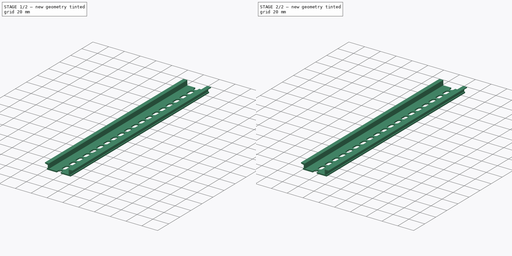
[diagram: build sequence overview — one tinted view per stage of 2, left to right]
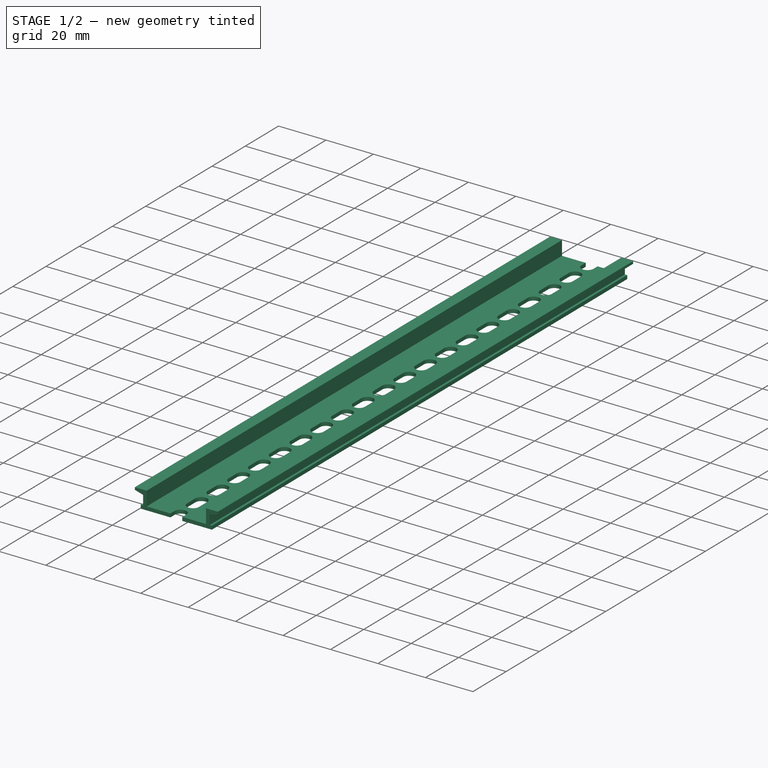
[diagram: stage 1 of 2 — iso view after this stage's code; geometry added in this stage tinted green]
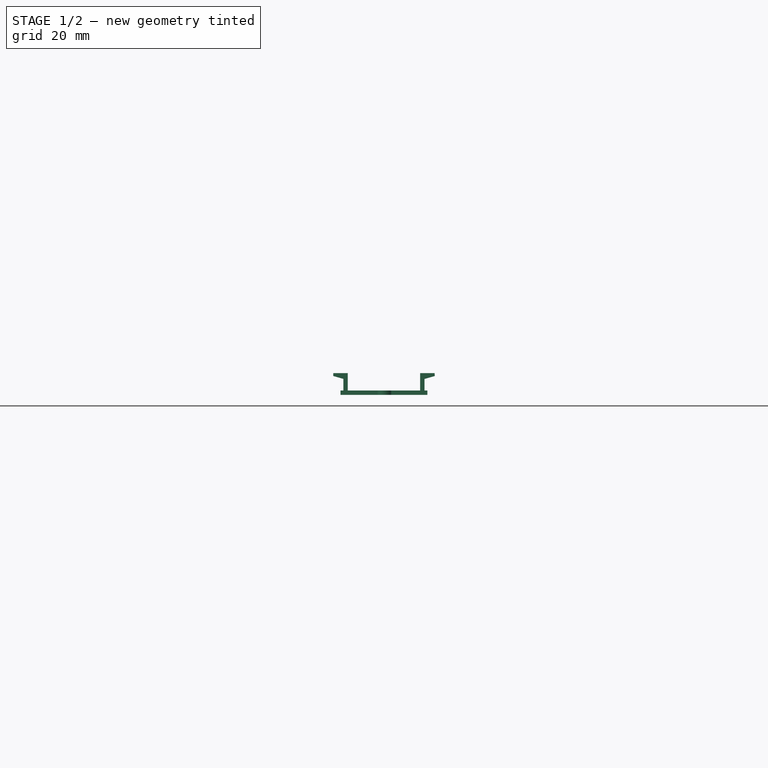
[diagram: stage 1 of 2 — front view after this stage's code; geometry added in this stage tinted green]
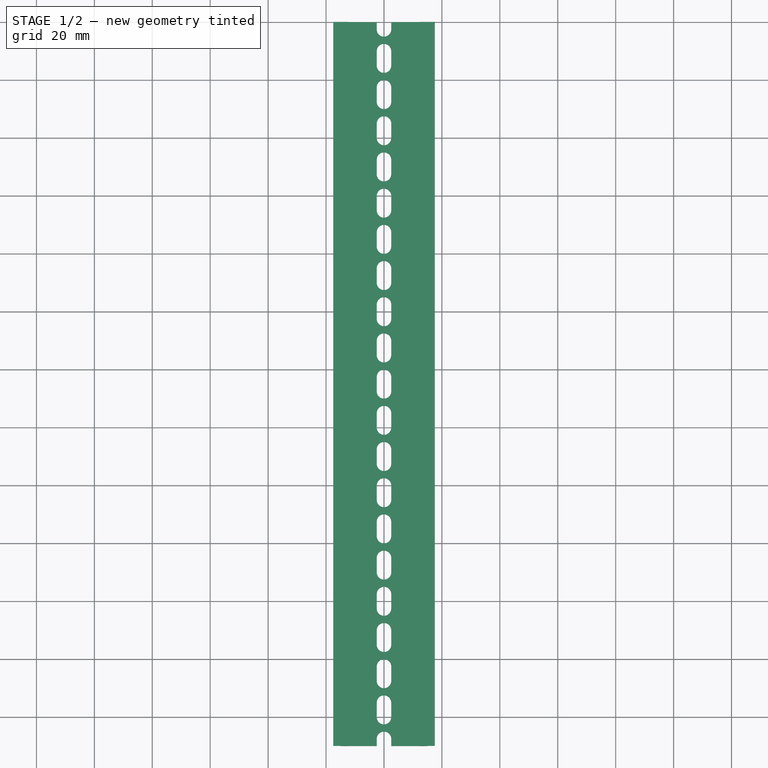
[diagram: stage 1 of 2 — top view after this stage's code; geometry added in this stage tinted green]
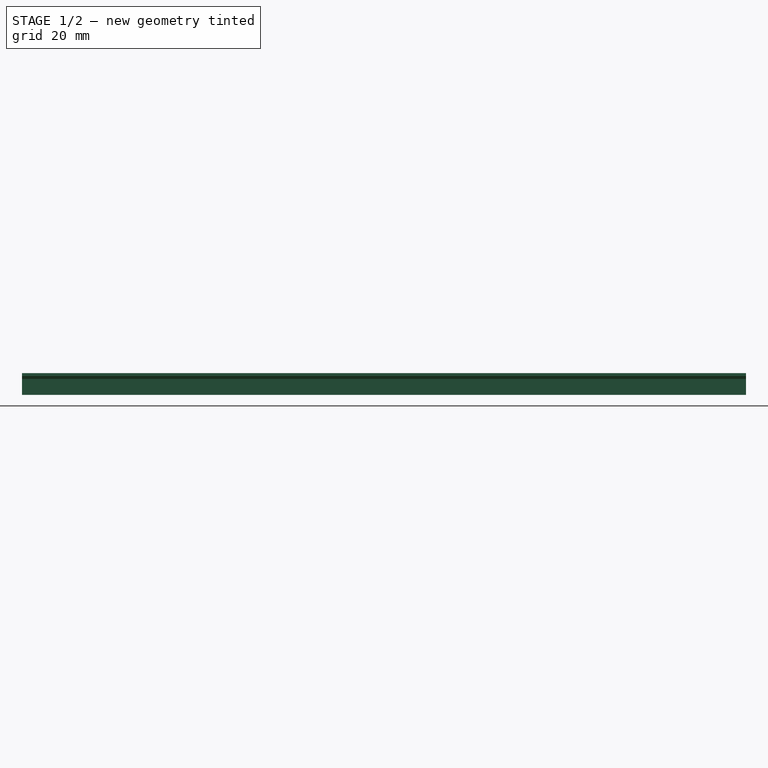
[diagram: stage 1 of 2 — right view after this stage's code; geometry added in this stage tinted green]
FCSTD DOCUMENT  (FreeCAD 0.19R24267 +99 (Git))
Label: DIN35レール250mm
License: All rights reserved
LicenseURL: http://en.wikipedia.org/wiki/All_rights_reserved
objects: Sketcher::SketchObject×2, PartDesign::Pocket×2, PartDesign::Pad×1, PartDesign::Body×1
note: 9 computed .brp shape members not serialized (recipe doc carries the construction recipe); baked Part::Feature solids carry a one-line shape summary decoded from their .brp

FEATURE [Sketcher::SketchObject] Sketch
  FullyConstrained = false
  MapMode = 5
  Placement = pos=(0,0,0) rot=(1,0,0;1.5708rad)
  Support = -> [XZ_Plane]
  sketch-geometry (18):
    g0: LineSegment StartX=0 StartY=0 StartZ=0 EndX=-15 EndY=0 EndZ=0
    g1: LineSegment StartX=-15 StartY=0 StartZ=0 EndX=-15 EndY=1.5 EndZ=0
    g2: LineSegment StartX=-15 StartY=1.5 StartZ=0 EndX=-14 EndY=1.5 EndZ=0
    g3: LineSegment StartX=-14 StartY=1.5 StartZ=0 EndX=-14 EndY=5.5 EndZ=0
    g4: LineSegment StartX=-12.5 StartY=7.5 StartZ=0 EndX=-12.5 EndY=1.5 EndZ=0
    g5: LineSegment StartX=-12.5 StartY=1.5 StartZ=0 EndX=0 EndY=1.5 EndZ=0
    g6: LineSegment StartX=-12.5 StartY=7.5 StartZ=0 EndX=-17.5 EndY=7.5 EndZ=0
    g7: LineSegment StartX=-17.5 StartY=7.5 StartZ=0 EndX=-17.5 EndY=6.5 EndZ=0
    g8: LineSegment StartX=-17.5 StartY=6.5 StartZ=0 EndX=-14 EndY=5.5 EndZ=0
    g9: LineSegment StartX=0 StartY=0 StartZ=0 EndX=15 EndY=0 EndZ=0
    g10: LineSegment StartX=15 StartY=0 StartZ=0 EndX=15 EndY=1.5 EndZ=0
    g11: LineSegment StartX=15 StartY=1.5 StartZ=0 EndX=14 EndY=1.5 EndZ=0
    g12: LineSegment StartX=14 StartY=1.5 StartZ=0 EndX=14 EndY=5.5 EndZ=0
    g13: LineSegment StartX=14 StartY=5.5 StartZ=0 EndX=17.5148 EndY=6.5 EndZ=0
    g14: LineSegment StartX=17.5148 StartY=6.5 StartZ=0 EndX=17.5 EndY=7.5 EndZ=0
    g15: LineSegment StartX=17.5 StartY=7.5 StartZ=0 EndX=12.5 EndY=7.5 EndZ=0
    g16: LineSegment StartX=12.5 StartY=7.5 StartZ=0 EndX=12.5 EndY=1.5 EndZ=0
    g17: LineSegment StartX=12.5 StartY=1.5 StartZ=0 EndX=0 EndY=1.5 EndZ=0
  constraints (52):
    c: Coincident(g0,g-1)
    c: Horizontal(g0)
    c: Coincident(g1,g0)
    c: Coincident(g2,g1)
    c: Horizontal(g2)
    c: Coincident(g3,g2)
    c: Vertical(g3)
    c: Vertical(g4)
    c: Coincident(g5,g4)
    c: PointOnObject(g5,g-2)
    c: Horizontal(g5)
    c: DistanceX(g0,g0) = 15
    c: DistanceY(g1,g1) = 1.5
    c: Angle(g1,g2) = 1.5708
    c: DistanceX(g2,g2) = 1
    c: DistanceY(g3,g3) = 4
    c: DistanceY(g4,g4) = 6
    c: Coincident(g6,g4)
    c: Horizontal(g6)
    c: DistanceX(g2,g4) = 1.5
    c: Coincident(g7,g6)
    c: Vertical(g7)
    c: DistanceY(g7,g7) = 1
    c: DistanceY(g0,g5) = 1.5
    c: Coincident(g8,g7)
    c: Coincident(g8,g3)
    c: DistanceX(g6,g6) = 5
    c: Coincident(g9,g0)
    c: PointOnObject(g9,g-1)
    c: Coincident(g10,g9)
    c: Vertical(g10)
    c: Coincident(g11,g10)
    c: Coincident(g12,g11)
    c: Vertical(g12)
    c: Coincident(g13,g12)
    c: Coincident(g14,g13)
    c: Coincident(g15,g14)
    c: Horizontal(g15)
    c: Coincident(g16,g15)
    c: Vertical(g16)
    c: Coincident(g17,g16)
    c: Coincident(g17,g5)
    c: Horizontal(g17)
    c: DistanceX(g9,g9) = 15
    c: DistanceY(g10,g10) = 1.5
    c: DistanceX(g11,g11) = 1
    c: DistanceY(g16,g16) = 6
    c: DistanceY(g14,g14) = 1
    c: DistanceX(g15,g15) = 5
    c: DistanceX(g16,g11) = 1.5
    c: DistanceY(g12,g12) = 4
    c: Angle(g11,g12) = 1.5708
FEATURE [PartDesign::Pad] Pad  label="レール断面図"
  Direction = (1,1,1)
  Length = 250
  Length2 = 100
  Placement = pos=(0,0,0) rot=(1,0,0;1.5708rad)
  Profile = -> Sketch
  Type = 0
FEATURE [Sketcher::SketchObject] Sketch001
  FullyConstrained = true
  MapMode = 5
  Placement = pos=(0,1e-15,1.5) rot=(0,0,1;3.14159rad)
  Support = -> [Pad]
  sketch-geometry (96):
    g0: ArcOfCircle CenterX=0 CenterY=2.5 CenterZ=0 NormalX=0 NormalY=0 NormalZ=1 AngleXU=0 Radius=2.5 StartAngle=2e-16 EndAngle=3.14159
    g1: ArcOfCircle CenterX=-1e-16 CenterY=-2.5 CenterZ=0 NormalX=0 NormalY=0 NormalZ=1 AngleXU=0 Radius=2.5 StartAngle=3.14159 EndAngle=6.28319
    g2: LineSegment StartX=-2.5 StartY=2.5 StartZ=0 EndX=-2.5 EndY=-2.5 EndZ=0
    g3: LineSegment StartX=2.5 StartY=2.5 StartZ=0 EndX=2.5 EndY=-2.5 EndZ=0
    g4: ArcOfCircle CenterX=0 CenterY=15 CenterZ=0 NormalX=0 NormalY=0 NormalZ=1 AngleXU=0 Radius=2.5 StartAngle=2e-16 EndAngle=3.14159
    g5: ArcOfCircle CenterX=0 CenterY=10 CenterZ=0 NormalX=0 NormalY=0 NormalZ=1 AngleXU=0 Radius=2.5 StartAngle=3.14159 EndAngle=6.28319
    g6: LineSegment StartX=-2.5 StartY=15 StartZ=0 EndX=-2.5 EndY=10 EndZ=0
    g7: LineSegment StartX=2.5 StartY=15 StartZ=0 EndX=2.5 EndY=10 EndZ=0
    g8: ArcOfCircle CenterX=-1e-16 CenterY=27.5 CenterZ=0 NormalX=0 NormalY=0 NormalZ=1 AngleXU=0 Radius=2.5 StartAngle=5e-16 EndAngle=3.14159
    g9: ArcOfCircle CenterX=0 CenterY=22.5 CenterZ=0 NormalX=0 NormalY=0 NormalZ=1 AngleXU=0 Radius=2.5 StartAngle=3.14159 EndAngle=6.28319
    g10: LineSegment StartX=-2.5 StartY=27.5 StartZ=0 EndX=-2.5 EndY=22.5 EndZ=0
    g11: LineSegment StartX=2.5 StartY=27.5 StartZ=0 EndX=2.5 EndY=22.5 EndZ=0
    g12: ArcOfCircle CenterX=-1e-16 CenterY=40 CenterZ=0 NormalX=0 NormalY=0 NormalZ=1 AngleXU=0 Radius=2.5 StartAngle=1.3e-15 EndAngle=3.14159
    g13: ArcOfCircle CenterX=0 CenterY=35 CenterZ=0 NormalX=0 NormalY=0 NormalZ=1 AngleXU=0 Radius=2.5 StartAngle=3.14159 EndAngle=6.28319
    g14: LineSegment StartX=-2.5 StartY=40 StartZ=0 EndX=-2.5 EndY=35 EndZ=0
    g15: LineSegment StartX=2.5 StartY=40 StartZ=0 EndX=2.5 EndY=35 EndZ=0
    g16: ArcOfCircle CenterX=0 CenterY=52.5 CenterZ=0 NormalX=0 NormalY=0 NormalZ=1 AngleXU=0 Radius=2.5 StartAngle=1.2e-15 EndAngle=3.14159
    g17: ArcOfCircle CenterX=0 CenterY=47.5 CenterZ=0 NormalX=0 NormalY=0 NormalZ=1 AngleXU=0 Radius=2.5 StartAngle=3.14159 EndAngle=6.28319
    g18: LineSegment StartX=-2.5 StartY=52.5 StartZ=0 EndX=-2.5 EndY=47.5 EndZ=0
    g19: LineSegment StartX=2.5 StartY=52.5 StartZ=0 EndX=2.5 EndY=47.5 EndZ=0
    g20: ArcOfCircle CenterX=1e-16 CenterY=65 CenterZ=0 NormalX=0 NormalY=0 NormalZ=1 AngleXU=0 Radius=2.5 StartAngle=0 EndAngle=3.14159
    g21: ArcOfCircle CenterX=0 CenterY=60 CenterZ=0 NormalX=0 NormalY=0 NormalZ=1 AngleXU=0 Radius=2.5 StartAngle=3.14159 EndAngle=6.28319
    g22: LineSegment StartX=-2.5 StartY=65 StartZ=0 EndX=-2.5 EndY=60 EndZ=0
    g23: LineSegment StartX=2.5 StartY=65 StartZ=0 EndX=2.5 EndY=60 EndZ=0
    g24: ArcOfCircle CenterX=0 CenterY=77.5 CenterZ=0 NormalX=0 NormalY=0 NormalZ=1 AngleXU=0 Radius=2.5 StartAngle=-1.8e-15 EndAngle=3.14159
    g25: ArcOfCircle CenterX=2e-16 CenterY=72.5 CenterZ=0 NormalX=0 NormalY=0 NormalZ=1 AngleXU=0 Radius=2.5 StartAngle=3.14159 EndAngle=6.28319
    g26: LineSegment StartX=-2.5 StartY=77.5 StartZ=0 EndX=-2.5 EndY=72.5 EndZ=0
    g27: LineSegment StartX=2.5 StartY=77.5 StartZ=0 EndX=2.5 EndY=72.5 EndZ=0
    g28: ArcOfCircle CenterX=1e-16 CenterY=90 CenterZ=0 NormalX=0 NormalY=0 NormalZ=1 AngleXU=0 Radius=2.5 StartAngle=1.5e-15 EndAngle=3.14159
    g29: ArcOfCircle CenterX=0 CenterY=85 CenterZ=0 NormalX=0 NormalY=0 NormalZ=1 AngleXU=0 Radius=2.5 StartAngle=3.14159 EndAngle=6.28319
    g30: LineSegment StartX=-2.5 StartY=90 StartZ=0 EndX=-2.5 EndY=85 EndZ=0
    g31: LineSegment StartX=2.5 StartY=90 StartZ=0 EndX=2.5 EndY=85 EndZ=0
    g32: ArcOfCircle CenterX=1e-16 CenterY=102.5 CenterZ=0 NormalX=0 NormalY=0 NormalZ=1 AngleXU=0 Radius=2.5 StartAngle=6e-16 EndAngle=3.14159
    g33: ArcOfCircle CenterX=0 CenterY=97.5 CenterZ=0 NormalX=0 NormalY=0 NormalZ=1 AngleXU=0 Radius=2.5 StartAngle=3.14159 EndAngle=6.28319
    g34: LineSegment StartX=-2.5 StartY=102.5 StartZ=0 EndX=-2.5 EndY=97.5 EndZ=0
    g35: LineSegment StartX=2.5 StartY=102.5 StartZ=0 EndX=2.5 EndY=97.5 EndZ=0
    g36: ArcOfCircle CenterX=0 CenterY=115 CenterZ=0 NormalX=0 NormalY=0 NormalZ=1 AngleXU=0 Radius=2.5 StartAngle=1.2e-15 EndAngle=3.14159
    g37: ArcOfCircle CenterX=0 CenterY=110 CenterZ=0 NormalX=0 NormalY=0 NormalZ=1 AngleXU=0 Radius=2.5 StartAngle=3.14159 EndAngle=6.28319
    g38: LineSegment StartX=-2.5 StartY=115 StartZ=0 EndX=-2.5 EndY=110 EndZ=0
    g39: LineSegment StartX=2.5 StartY=115 StartZ=0 EndX=2.5 EndY=110 EndZ=0
    g40: ArcOfCircle CenterX=-1e-16 CenterY=127.5 CenterZ=0 NormalX=0 NormalY=0 NormalZ=1 AngleXU=0 Radius=2.5 StartAngle=6e-16 EndAngle=3.14159
    g41: ArcOfCircle CenterX=0 CenterY=122.5 CenterZ=0 NormalX=0 NormalY=0 NormalZ=1 AngleXU=0 Radius=2.5 StartAngle=3.14159 EndAngle=6.28319
    g42: LineSegment StartX=-2.5 StartY=127.5 StartZ=0 EndX=-2.5 EndY=122.5 EndZ=0
    g43: LineSegment StartX=2.5 StartY=127.5 StartZ=0 EndX=2.5 EndY=122.5 EndZ=0
    g44: ArcOfCircle CenterX=1e-16 CenterY=140 CenterZ=0 NormalX=0 NormalY=0 NormalZ=1 AngleXU=0 Radius=2.5 StartAngle=-9e-16 EndAngle=3.14159
    g45: ArcOfCircle CenterX=0 CenterY=135 CenterZ=0 NormalX=0 NormalY=0 NormalZ=1 AngleXU=0 Radius=2.5 StartAngle=3.14159 EndAngle=6.28319
    g46: LineSegment StartX=-2.5 StartY=140 StartZ=0 EndX=-2.5 EndY=135 EndZ=0
    g47: LineSegment StartX=2.5 StartY=140 StartZ=0 EndX=2.5 EndY=135 EndZ=0
    g48: ArcOfCircle CenterX=0 CenterY=152.5 CenterZ=0 NormalX=0 NormalY=0 NormalZ=1 AngleXU=0 Radius=2.5 StartAngle=4e-15 EndAngle=3.14159
    g49: ArcOfCircle CenterX=0 CenterY=147.5 CenterZ=0 NormalX=0 NormalY=0 NormalZ=1 AngleXU=0 Radius=2.5 StartAngle=3.14159 EndAngle=6.28319
    g50: LineSegment StartX=-2.5 StartY=152.5 StartZ=0 EndX=-2.5 EndY=147.5 EndZ=0
    g51: LineSegment StartX=2.5 StartY=152.5 StartZ=0 EndX=2.5 EndY=147.5 EndZ=0
    g52: ArcOfCircle CenterX=-1e-16 CenterY=165 CenterZ=0 NormalX=0 NormalY=0 NormalZ=1 AngleXU=0 Radius=2.5 StartAngle=3e-16 EndAngle=3.14159
    g53: ArcOfCircle CenterX=0 CenterY=160 CenterZ=0 NormalX=0 NormalY=0 NormalZ=1 AngleXU=0 Radius=2.5 StartAngle=3.14159 EndAngle=6.28319
    g54: LineSegment StartX=-2.5 StartY=165 StartZ=0 EndX=-2.5 EndY=160 EndZ=0
    g55: LineSegment StartX=2.5 StartY=165 StartZ=0 EndX=2.5 EndY=160 EndZ=0
    g56: ArcOfCircle CenterX=0 CenterY=177.5 CenterZ=0 NormalX=0 NormalY=0 NormalZ=1 AngleXU=0 Radius=2.5 StartAngle=-3.6e-15 EndAngle=3.14159
    g57: ArcOfCircle CenterX=2e-16 CenterY=172.5 CenterZ=0 NormalX=0 NormalY=0 NormalZ=1 AngleXU=0 Radius=2.5 StartAngle=3.14159 EndAngle=6.28319
    g58: LineSegment StartX=-2.5 StartY=177.5 StartZ=0 EndX=-2.5 EndY=172.5 EndZ=0
    g59: LineSegment StartX=2.5 StartY=177.5 StartZ=0 EndX=2.5 EndY=172.5 EndZ=0
    g60: ArcOfCircle CenterX=0 CenterY=190 CenterZ=0 NormalX=0 NormalY=0 NormalZ=1 AngleXU=0 Radius=2.5 StartAngle=5.7e-15 EndAngle=3.14159
    g61: ArcOfCircle CenterX=-1e-16 CenterY=185 CenterZ=0 NormalX=0 NormalY=0 NormalZ=1 AngleXU=0 Radius=2.5 StartAngle=3.14159 EndAngle=6.28319
    g62: LineSegment StartX=-2.5 StartY=190 StartZ=0 EndX=-2.5 EndY=185 EndZ=0
    g63: LineSegment StartX=2.5 StartY=190 StartZ=0 EndX=2.5 EndY=185 EndZ=0
    g64: ArcOfCircle CenterX=0 CenterY=202.5 CenterZ=0 NormalX=0 NormalY=0 NormalZ=1 AngleXU=0 Radius=2.5 StartAngle=-4.4e-15 EndAngle=3.14159
    g65: ArcOfCircle CenterX=-1e-16 CenterY=197.5 CenterZ=0 NormalX=0 NormalY=0 NormalZ=1 AngleXU=0 Radius=2.5 StartAngle=3.14159 EndAngle=6.28319
    g66: LineSegment StartX=-2.5 StartY=202.5 StartZ=0 EndX=-2.5 EndY=197.5 EndZ=0
    g67: LineSegment StartX=2.5 StartY=202.5 StartZ=0 EndX=2.5 EndY=197.5 EndZ=0
    g68: ArcOfCircle CenterX=0 CenterY=215 CenterZ=0 NormalX=0 NormalY=0 NormalZ=1 AngleXU=0 Radius=2.5 StartAngle=4.5e-15 EndAngle=3.14159
    g69: ArcOfCircle CenterX=-1e-16 CenterY=210 CenterZ=0 NormalX=0 NormalY=0 NormalZ=1 AngleXU=0 Radius=2.5 StartAngle=3.14159 EndAngle=6.28319
    g70: LineSegment StartX=-2.5 StartY=215 StartZ=0 EndX=-2.5 EndY=210 EndZ=0
    g71: LineSegment StartX=2.5 StartY=215 StartZ=0 EndX=2.5 EndY=210 EndZ=0
    g72: ArcOfCircle CenterX=0 CenterY=227.5 CenterZ=0 NormalX=0 NormalY=0 NormalZ=1 AngleXU=0 Radius=2.5 StartAngle=4.8e-15 EndAngle=3.14159
    g73: ArcOfCircle CenterX=1e-16 CenterY=222.5 CenterZ=0 NormalX=0 NormalY=0 NormalZ=1 AngleXU=0 Radius=2.5 StartAngle=3.14159 EndAngle=6.28319
    g74: LineSegment StartX=-2.5 StartY=227.5 StartZ=0 EndX=-2.5 EndY=222.5 EndZ=0
    g75: LineSegment StartX=2.5 StartY=227.5 StartZ=0 EndX=2.5 EndY=222.5 EndZ=0
    g76: ArcOfCircle CenterX=-1e-16 CenterY=240 CenterZ=0 NormalX=0 NormalY=0 NormalZ=1 AngleXU=0 Radius=2.5 StartAngle=2.4e-15 EndAngle=3.14159
    g77: ArcOfCircle CenterX=0 CenterY=235 CenterZ=0 NormalX=0 NormalY=0 NormalZ=1 AngleXU=0 Radius=2.5 StartAngle=3.14159 EndAngle=6.28319
    g78: LineSegment StartX=-2.5 StartY=240 StartZ=0 EndX=-2.5 EndY=235 EndZ=0
    g79: LineSegment StartX=2.5 StartY=240 StartZ=0 EndX=2.5 EndY=235 EndZ=0
    g80: ArcOfCircle CenterX=0 CenterY=252.5 CenterZ=0 NormalX=0 NormalY=0 NormalZ=1 AngleXU=0 Radius=2.5 StartAngle=-4.4e-15 EndAngle=3.14159
    g81: ArcOfCircle CenterX=1e-16 CenterY=247.5 CenterZ=0 NormalX=0 NormalY=0 NormalZ=1 AngleXU=0 Radius=2.5 StartAngle=3.14159 EndAngle=6.28319
    g82: LineSegment StartX=-2.5 StartY=252.5 StartZ=0 EndX=-2.5 EndY=247.5 EndZ=0
    g83: LineSegment StartX=2.5 StartY=252.5 StartZ=0 EndX=2.5 EndY=247.5 EndZ=0
    g84: ArcOfCircle CenterX=-2e-16 CenterY=265 CenterZ=0 NormalX=0 NormalY=0 NormalZ=1 AngleXU=0 Radius=2.5 StartAngle=-5.3e-15 EndAngle=3.14159
    g85: ArcOfCircle CenterX=0 CenterY=260 CenterZ=0 NormalX=0 NormalY=0 NormalZ=1 AngleXU=0 Radius=2.5 StartAngle=3.14159 EndAngle=6.28319
    g86: LineSegment StartX=-2.5 StartY=265 StartZ=0 EndX=-2.5 EndY=260 EndZ=0
    g87: LineSegment StartX=2.5 StartY=265 StartZ=0 EndX=2.5 EndY=260 EndZ=0
    g88: ArcOfCircle CenterX=1e-16 CenterY=277.5 CenterZ=0 NormalX=0 NormalY=0 NormalZ=1 AngleXU=0 Radius=2.5 StartAngle=8.1e-15 EndAngle=3.14159
    g89: ArcOfCircle CenterX=0 CenterY=272.5 CenterZ=0 NormalX=0 NormalY=0 NormalZ=1 AngleXU=0 Radius=2.5 StartAngle=3.14159 EndAngle=6.28319
    g90: LineSegment StartX=-2.5 StartY=277.5 StartZ=0 EndX=-2.5 EndY=272.5 EndZ=0
    g91: LineSegment StartX=2.5 StartY=277.5 StartZ=0 EndX=2.5 EndY=272.5 EndZ=0
    g92: ArcOfCircle CenterX=2e-16 CenterY=285 CenterZ=0 NormalX=0 NormalY=0 NormalZ=1 AngleXU=0 Radius=2.5 StartAngle=3.14159 EndAngle=6.28319
    g93: ArcOfCircle CenterX=0 CenterY=290 CenterZ=0 NormalX=0 NormalY=0 NormalZ=1 AngleXU=0 Radius=2.5 StartAngle=4.1e-15 EndAngle=3.14159
    g94: LineSegment StartX=2.5 StartY=285 StartZ=0 EndX=2.5 EndY=290 EndZ=0
    g95: LineSegment StartX=-2.5 StartY=285 StartZ=0 EndX=-2.5 EndY=290 EndZ=0
  constraints (240):
    c: Tangent(g0,g3) = 1.5708
    c: Tangent(g0,g2) = -1.5708
    c: Tangent(g2,g1) = -1.5708
    c: Tangent(g3,g1) = 1.5708
    c: Vertical(g2)
    c: Equal(g0,g1)
    c: Radius(g0) = 2.5
    c: DistanceY(g3,g3) = 5
    c: PointOnObject(g0,g-2)
    c: Tangent(g4,g7) = 1.5708
    c: Tangent(g4,g6) = -1.5708
    c: Tangent(g6,g5) = -1.5708
    c: Tangent(g7,g5) = 1.5708
    c: Vertical(g6)
    c: Equal(g4,g5)
    c: Equal(g0,g4) = 2.5
    c: Equal(g3,g7) = 5
    c: PointOnObject(g4,g-2)
    c: Tangent(g8,g11) = 1.5708
    c: Tangent(g8,g10) = -1.5708
    c: Tangent(g10,g9) = -1.5708
    c: Tangent(g11,g9) = 1.5708
    c: Vertical(g10)
    c: Equal(g8,g9)
    c: Equal(g0,g8) = 2.5
    c: Equal(g3,g11) = 5
    c: PointOnObject(g9,g-2)
    c: DistanceY(g1,g5) = 12.5
    c: DistanceY(g5,g9) = 12.5
    c: DistanceY(g-1,g0) = 2.5
    c: Tangent(g12,g15) = 1.5708
    c: Tangent(g12,g14) = -1.5708
    c: Tangent(g14,g13) = -1.5708
    c: Tangent(g15,g13) = 1.5708
    c: Vertical(g14)
    c: Equal(g12,g13)
    c: Equal(g0,g12) = 2.5
    c: Equal(g3,g15) = 5
    c: Tangent(g16,g19) = 1.5708
    c: Tangent(g16,g18) = -1.5708
    c: Tangent(g18,g17) = -1.5708
    c: Tangent(g19,g17) = 1.5708
    c: Vertical(g18)
    c: Equal(g16,g17)
    c: Equal(g12,g16) = 2.5
    c: Equal(g15,g19) = 5
    c: Tangent(g20,g23) = 1.5708
    c: Tangent(g20,g22) = -1.5708
    c: Tangent(g22,g21) = -1.5708
    c: Tangent(g23,g21) = 1.5708
    c: Vertical(g22)
    c: Equal(g20,g21)
    c: Equal(g12,g20) = 2.5
    c: Equal(g15,g23) = 5
    c: DistanceY(g13,g17) = 12.5
    c: DistanceY(g17,g21) = 12.5
    c: PointOnObject(g16,g-2)
    c: PointOnObject(g21,g-2)
    c: PointOnObject(g13,g-2)
    c: DistanceY(g9,g13) = 12.5
    c: Tangent(g24,g27) = 1.5708
    c: Tangent(g24,g26) = -1.5708
    c: Tangent(g26,g25) = -1.5708
    c: Tangent(g27,g25) = 1.5708
    c: Vertical(g26)
    c: Equal(g24,g25)
    c: Equal(g0,g24) = 2.5
    c: Equal(g3,g27) = 5
    c: Tangent(g28,g31) = 1.5708
    c: Tangent(g28,g30) = -1.5708
    c: Tangent(g30,g29) = -1.5708
    c: Tangent(g31,g29) = 1.5708
    c: Vertical(g30)
    c: Equal(g28,g29)
    c: Equal(g24,g28) = 2.5
    c: Equal(g27,g31) = 5
    c: Tangent(g32,g35) = 1.5708
    c: Tangent(g32,g34) = -1.5708
    c: Tangent(g34,g33) = -1.5708
    c: Tangent(g35,g33) = 1.5708
    c: Vertical(g34)
    c: Equal(g32,g33)
    c: Equal(g24,g32) = 2.5
    c: Equal(g27,g35) = 5
    c: DistanceY(g25,g29) = 12.5
    c: DistanceY(g29,g33) = 12.5
    c: Tangent(g36,g39) = 1.5708
    c: Tangent(g36,g38) = -1.5708
    c: Tangent(g38,g37) = -1.5708
    c: Tangent(g39,g37) = 1.5708
    c: Vertical(g38)
    c: Equal(g36,g37)
    c: Equal(g24,g36) = 2.5
    c: Equal(g27,g39) = 5
    c: Tangent(g40,g43) = 1.5708
    c: Tangent(g40,g42) = -1.5708
    c: Tangent(g42,g41) = -1.5708
    c: Tangent(g43,g41) = 1.5708
    c: Vertical(g42)
    c: Equal(g40,g41)
    c: Equal(g36,g40) = 2.5
    c: Equal(g39,g43) = 5
    c: Tangent(g44,g47) = 1.5708
    c: Tangent(g44,g46) = -1.5708
    c: Tangent(g46,g45) = -1.5708
    c: Tangent(g47,g45) = 1.5708
    c: Vertical(g46)
    c: Equal(g44,g45)
    c: Equal(g36,g44) = 2.5
    c: Equal(g39,g47) = 5
    c: DistanceY(g37,g41) = 12.5
    c: DistanceY(g41,g45) = 12.5
    c: DistanceY(g33,g37) = 12.5
    c: Distance(g21,g25) = 12.5
    c: PointOnObject(g24,g-2)
    c: PointOnObject(g29,g-2)
    c: PointOnObject(g33,g-2)
    c: PointOnObject(g37,g-2)
    c: PointOnObject(g41,g-2)
    c: PointOnObject(g45,g-2)
    c: Tangent(g48,g51) = 1.5708
    c: Tangent(g48,g50) = -1.5708
    c: Tangent(g50,g49) = -1.5708
    c: Tangent(g51,g49) = 1.5708
    c: Vertical(g50)
    c: Equal(g48,g49)
    c: Equal(g0,g48) = 2.5
    c: Equal(g3,g51) = 5
    c: Tangent(g52,g55) = 1.5708
    c: Tangent(g52,g54) = -1.5708
    c: Tangent(g54,g53) = -1.5708
    c: Tangent(g55,g53) = 1.5708
    c: Vertical(g54)
    c: Equal(g52,g53)
    c: Equal(g48,g52) = 2.5
    c: Equal(g51,g55) = 5
    c: Tangent(g56,g59) = 1.5708
    c: Tangent(g56,g58) = -1.5708
    c: Tangent(g58,g57) = -1.5708
    c: Tangent(g59,g57) = 1.5708
    c: Vertical(g58)
    c: Equal(g56,g57)
    c: Equal(g48,g56) = 2.5
    c: Equal(g51,g59) = 5
    c: DistanceY(g49,g53) = 12.5
    c: DistanceY(g53,g57) = 12.5
    c: Tangent(g60,g63) = 1.5708
    c: Tangent(g60,g62) = -1.5708
    c: Tangent(g62,g61) = -1.5708
    c: Tangent(g63,g61) = 1.5708
    c: Vertical(g62)
    c: Equal(g60,g61)
    c: Equal(g48,g60) = 2.5
    c: Equal(g51,g63) = 5
    c: Tangent(g64,g67) = 1.5708
    c: Tangent(g64,g66) = -1.5708
    c: Tangent(g66,g65) = -1.5708
    c: Tangent(g67,g65) = 1.5708
    c: Vertical(g66)
    c: Equal(g64,g65)
    c: Equal(g60,g64) = 2.5
    c: Equal(g63,g67) = 5
    c: Tangent(g68,g71) = 1.5708
    c: Tangent(g68,g70) = -1.5708
    c: Tangent(g70,g69) = -1.5708
    c: Tangent(g71,g69) = 1.5708
    c: Vertical(g70)
    c: Equal(g68,g69)
    c: Equal(g60,g68) = 2.5
    c: Equal(g63,g71) = 5
    c: DistanceY(g61,g65) = 12.5
    c: DistanceY(g65,g69) = 12.5
    c: DistanceY(g57,g61) = 12.5
    c: Tangent(g72,g75) = 1.5708
    c: Tangent(g72,g74) = -1.5708
    c: Tangent(g74,g73) = -1.5708
    c: Tangent(g75,g73) = 1.5708
    c: Vertical(g74)
    c: Equal(g72,g73)
    c: Equal(g48,g72) = 2.5
    c: Equal(g51,g75) = 5
    c: Tangent(g76,g79) = 1.5708
    c: Tangent(g76,g78) = -1.5708
    c: Tangent(g78,g77) = -1.5708
    c: Tangent(g79,g77) = 1.5708
    c: Vertical(g78)
    c: Equal(g76,g77)
    c: Equal(g72,g76) = 2.5
    c: Equal(g75,g79) = 5
    c: Tangent(g80,g83) = 1.5708
    c: Tangent(g80,g82) = -1.5708
    c: Tangent(g82,g81) = -1.5708
    c: Tangent(g83,g81) = 1.5708
    c: Vertical(g82)
    c: Equal(g80,g81)
    c: Equal(g72,g80) = 2.5
    c: Equal(g75,g83) = 5
    c: DistanceY(g73,g77) = 12.5
    c: DistanceY(g77,g81) = 12.5
    c: Tangent(g84,g87) = 1.5708
    c: Tangent(g84,g86) = -1.5708
    c: Tangent(g86,g85) = -1.5708
    c: Tangent(g87,g85) = 1.5708
    c: Vertical(g86)
    c: Equal(g84,g85)
    c: Equal(g72,g84) = 2.5
    c: Equal(g75,g87) = 5
    c: Tangent(g88,g91) = 1.5708
    c: Tangent(g88,g90) = -1.5708
    c: Tangent(g90,g89) = -1.5708
    c: Tangent(g91,g89) = 1.5708
    c: Vertical(g90)
    c: Equal(g88,g89)
    c: Equal(g84,g88) = 2.5
    c: Equal(g87,g91) = 5
    c: Tangent(g92,g95) = 1.5708
    c: Tangent(g92,g94) = -1.5708
    c: Tangent(g94,g93) = -1.5708
    c: Tangent(g95,g93) = 1.5708
    c: Vertical(g94)
    c: Equal(g92,g93)
    c: Equal(g84,g92) = 2.5
    c: Equal(g87,g95) = 5
    c: DistanceY(g85,g89) = 12.5
    c: DistanceY(g81,g85) = 12.5
    c: Distance(g69,g73) = 12.5
    c: PointOnObject(g49,g-2)
    c: PointOnObject(g53,g-2)
    c: DistanceY(g45,g49) = 12.5
    c: PointOnObject(g56,g-2)
    c: PointOnObject(g60,g-2)
    c: PointOnObject(g64,g-2)
    c: PointOnObject(g89,g-2)
    c: PointOnObject(g68,g-2)
    c: PointOnObject(g72,g-2)
    c: PointOnObject(g77,g-2)
    c: PointOnObject(g80,g-2)
    c: PointOnObject(g85,g-2)
    c: PointOnObject(g93,g-2)
    c: DistanceY(g89,g92) = 12.5
FEATURE [PartDesign::Pocket] Pocket
  BaseFeature = -> Pad
  Length = 2
  Length2 = 100
  Placement = pos=(0,0,0) rot=(1,0,0;1.5708rad)
  Profile = -> Sketch001
  Type = 0
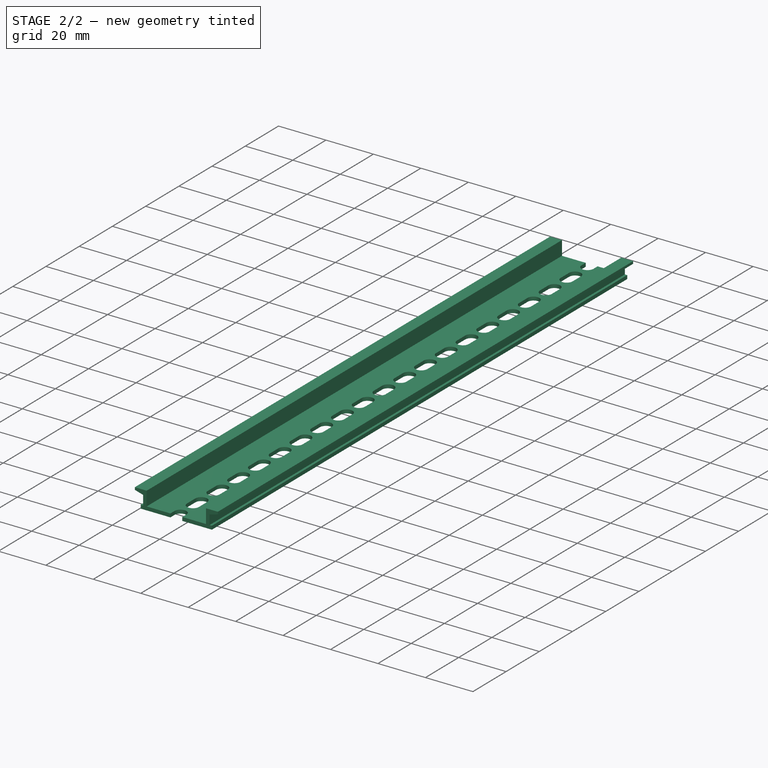
[diagram: stage 2 of 2 — iso view after this stage's code; geometry added in this stage tinted green]
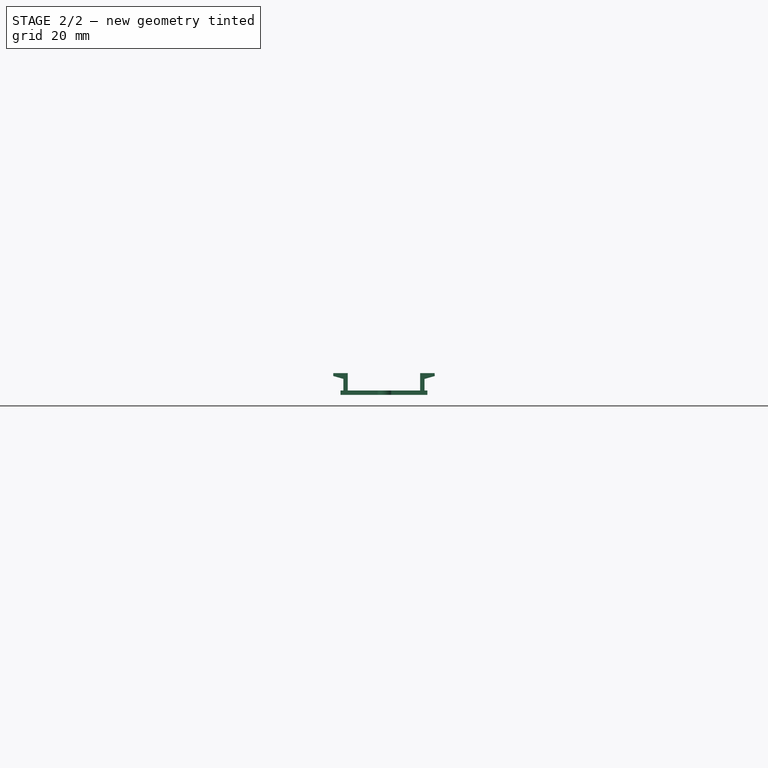
[diagram: stage 2 of 2 — front view after this stage's code; geometry added in this stage tinted green]
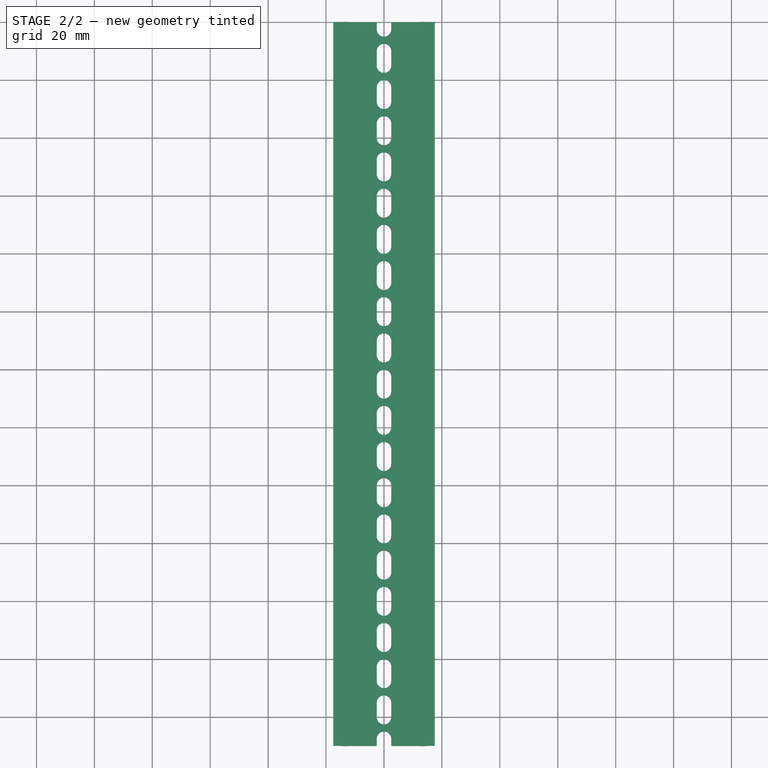
[diagram: stage 2 of 2 — top view after this stage's code; geometry added in this stage tinted green]
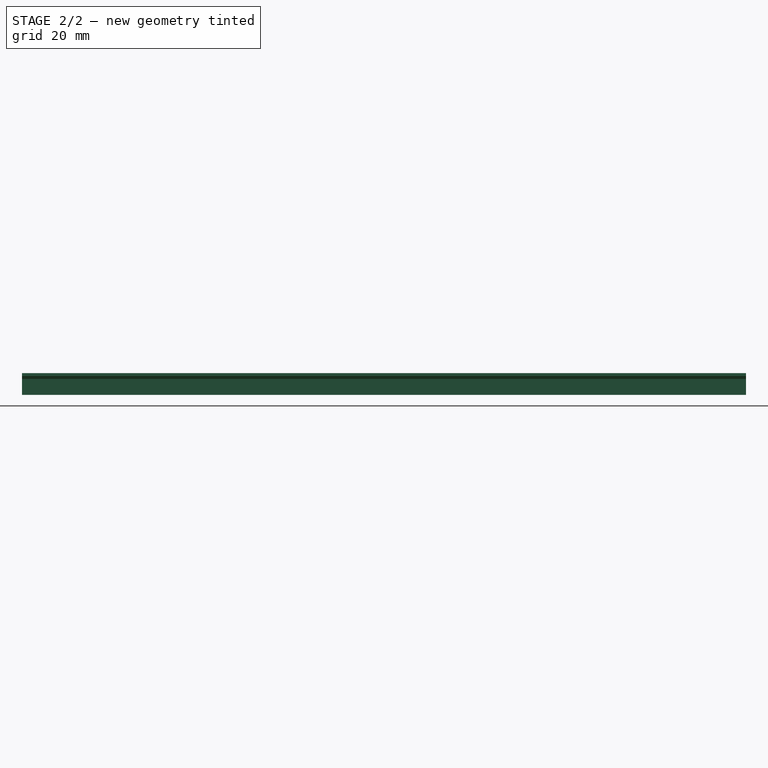
[diagram: stage 2 of 2 — right view after this stage's code; geometry added in this stage tinted green]
FEATURE [PartDesign::Pocket] Pocket001
  BaseFeature = -> Pocket
  Length = 3
  Length2 = 100
  Placement = pos=(0,0,0) rot=(1,0,0;1.5708rad)
  Profile = -> Sketch001
  Type = 0
FEATURE [PartDesign::Body] Body
  Group = -> [Sketch,Pad,Sketch001,Pocket,Pocket001]
  Origin = -> Origin
  Tip = -> Pocket001
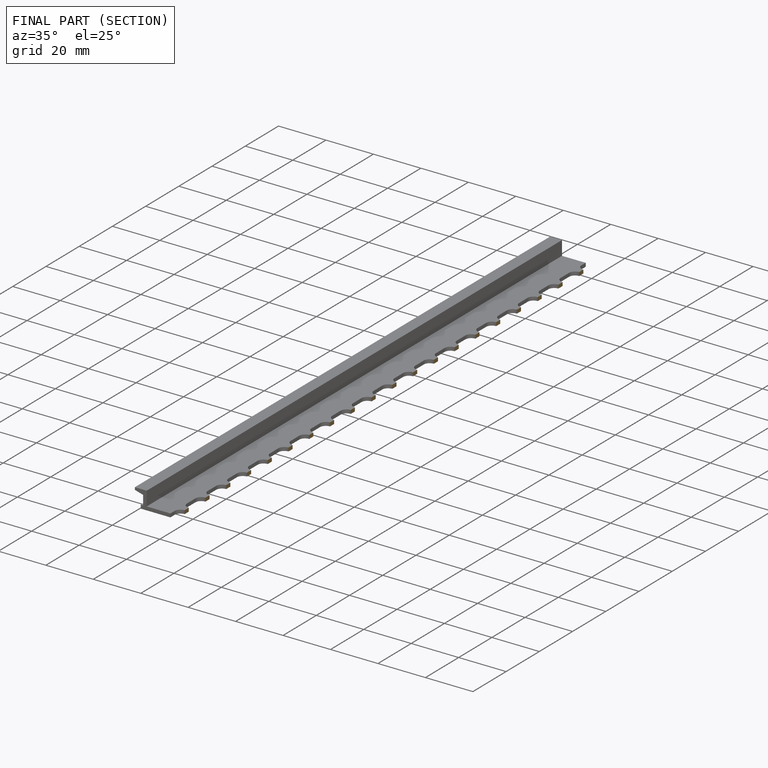
[diagram: finished part — half-section view (interior)]
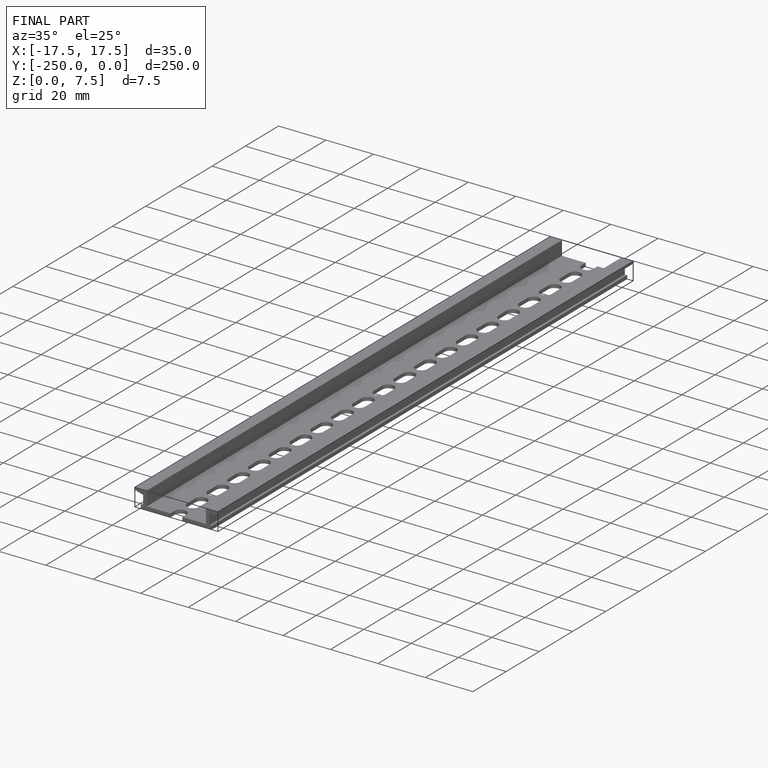
[diagram: finished part — iso view with bounding-box wireframe]
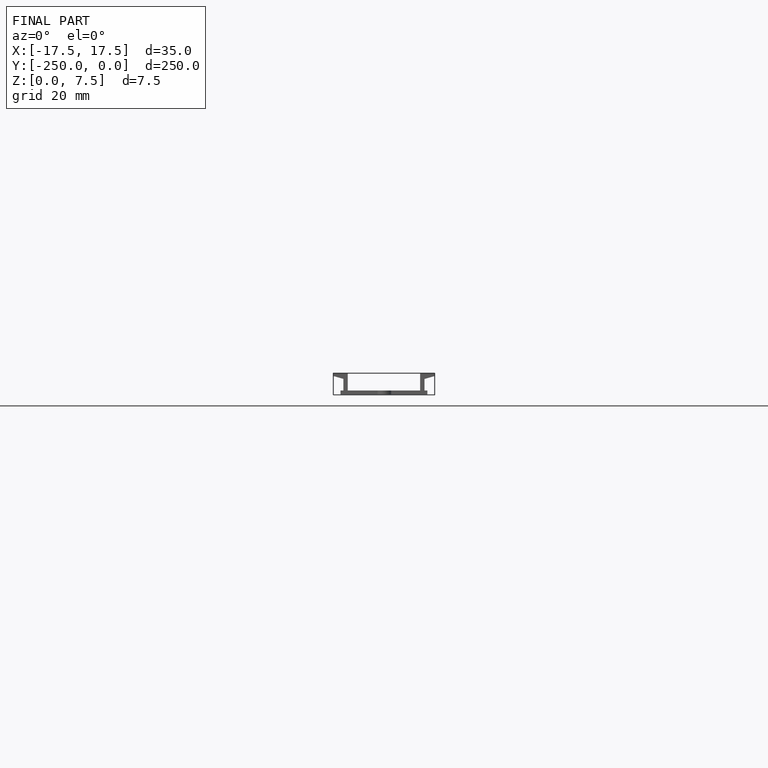
[diagram: finished part — front view with bounding-box wireframe]
